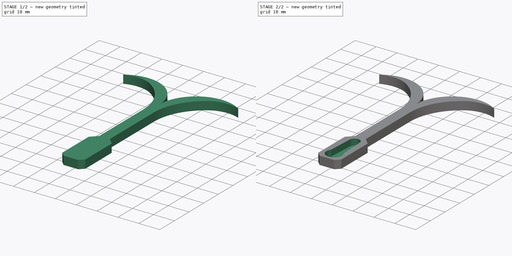
[diagram: build sequence overview — one tinted view per stage of 2, left to right]
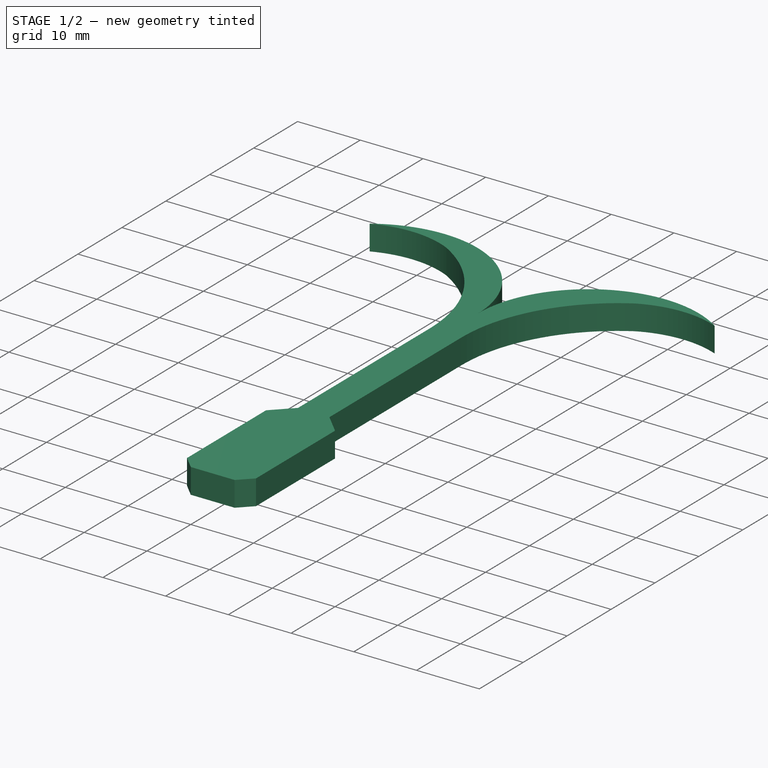
[diagram: stage 1 of 2 — iso view after this stage's code; geometry added in this stage tinted green]
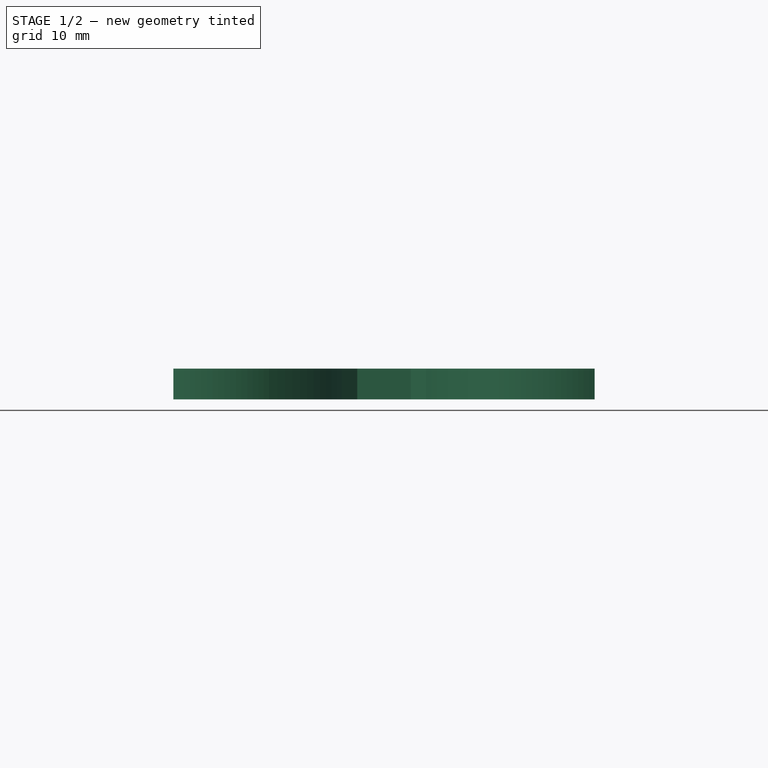
[diagram: stage 1 of 2 — front view after this stage's code; geometry added in this stage tinted green]
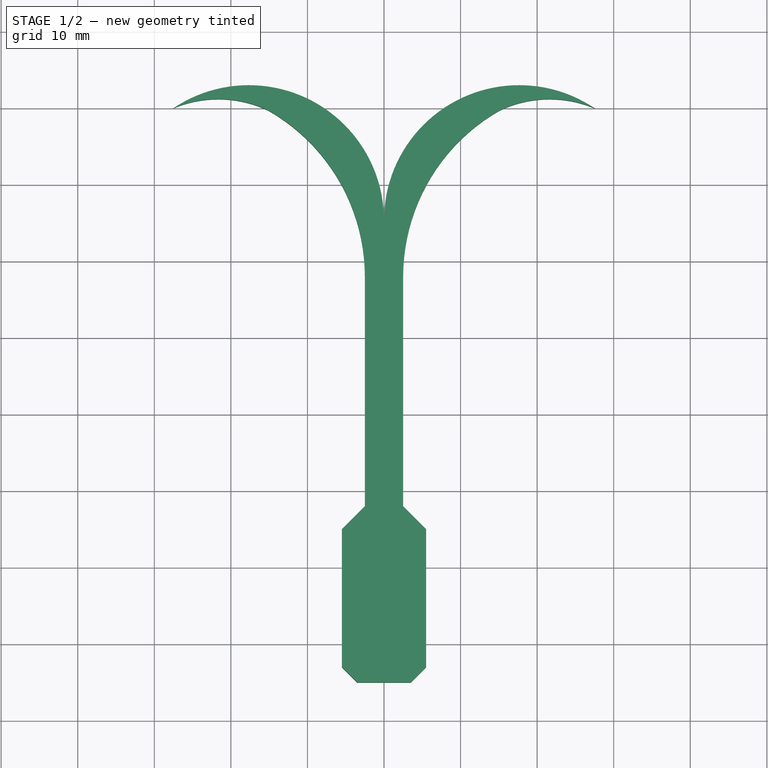
[diagram: stage 1 of 2 — top view after this stage's code; geometry added in this stage tinted green]
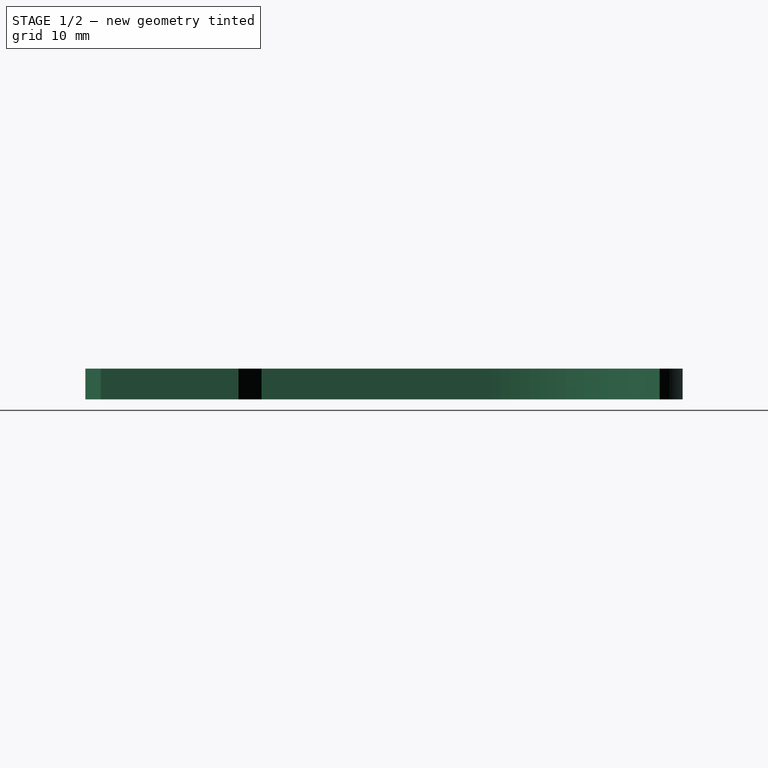
[diagram: stage 1 of 2 — right view after this stage's code; geometry added in this stage tinted green]
FCSTD DOCUMENT  (FreeCAD 0.15R4671 (Git))
Label: car-hand
License: All rights reserved
LicenseURL: http://en.wikipedia.org/wiki/All_rights_reserved
objects: Sketcher::SketchObject×2, PartDesign::Pad×1, PartDesign::Pocket×1
note: 6 computed .brp shape members not serialized (recipe doc carries the construction recipe); baked Part::Feature solids carry a one-line shape summary decoded from their .brp

FEATURE [Sketcher::SketchObject] Sketch
  sketch-geometry (24):
    g0: LineSegment StartX=2.5 StartY=18 StartZ=0 EndX=2.5 EndY=48 EndZ=0
    g1: LineSegment StartX=-2.5 StartY=48 StartZ=0 EndX=-2.5 EndY=18 EndZ=0
    g2: ArcOfCircle CenterX=27.5 CenterY=48 CenterZ=0 NormalX=0 NormalY=0 NormalZ=1 Radius=25 StartAngle=2.09339 EndAngle=3.14159
    g3: ArcOfCircle CenterX=17.6548 CenterY=55.3452 CenterZ=0 NormalX=0 NormalY=0 NormalZ=1 Radius=17.6548 StartAngle=0.979241 EndAngle=3.14159
    g4: LineSegment StartX=-2.5 StartY=18 StartZ=0 EndX=-5.5 EndY=15 EndZ=0
    g5: LineSegment StartX=-5.5 StartY=15 StartZ=0 EndX=-5.5 EndY=-3 EndZ=0
    g6: LineSegment StartX=-5.5 StartY=-3 StartZ=0 EndX=-3.5 EndY=-5 EndZ=0
    g7: LineSegment StartX=-3.5 StartY=-5 StartZ=0 EndX=3.5 EndY=-5 EndZ=0
    g8: LineSegment StartX=3.5 StartY=-5 StartZ=0 EndX=5.5 EndY=-3 EndZ=0
    g9: LineSegment StartX=5.5 StartY=-3 StartZ=0 EndX=5.5 EndY=15 EndZ=0
    g10: LineSegment StartX=5.5 StartY=15 StartZ=0 EndX=2.5 EndY=18 EndZ=0
    g11: LineSegment [constr] StartX=-2.5 StartY=18 StartZ=0 EndX=2.5 EndY=18 EndZ=0
    g12: LineSegment [constr] StartX=-5.5 StartY=15 StartZ=0 EndX=5.5 EndY=15 EndZ=0
    g13: ArcOfCircle CenterX=-27.5 CenterY=48 CenterZ=0 NormalX=0 NormalY=0 NormalZ=1 Radius=25 StartAngle=0 EndAngle=1.0482
    g14: ArcOfCircle CenterX=-17.6548 CenterY=55.3452 CenterZ=0 NormalX=0 NormalY=0 NormalZ=1 Radius=17.6548 StartAngle=1.4097e-08 EndAngle=2.16235
    g15: LineSegment [constr] StartX=-27.5 StartY=73 StartZ=0 EndX=27.5 EndY=73 EndZ=0
    g16: LineSegment [constr] StartX=-27.5 StartY=73 StartZ=0 EndX=-27.5 EndY=48 EndZ=0
    g17: LineSegment [constr] StartX=27.5 StartY=73 StartZ=0 EndX=27.5 EndY=48 EndZ=0
    g18: LineSegment [constr] StartX=-27.5 StartY=48 StartZ=0 EndX=27.5 EndY=48 EndZ=0
    g19: LineSegment [constr] StartX=-15.0217 StartY=69.6632 StartZ=0 EndX=15.0217 EndY=69.6632 EndZ=0
    g20: LineSegment [constr] StartX=0 StartY=73 StartZ=0 EndX=0 EndY=48 EndZ=0
    g21: ArcOfCircle CenterX=-21.6342 CenterY=56 CenterZ=0 NormalX=0 NormalY=0 NormalZ=1 Radius=15.1792 StartAngle=1.12006 EndAngle=1.96756
    g22: ArcOfCircle CenterX=21.6342 CenterY=56 CenterZ=0 NormalX=0 NormalY=0 NormalZ=1 Radius=15.1792 StartAngle=1.17403 EndAngle=2.02154
    g23: LineSegment [constr] StartX=-21.6342 StartY=56 StartZ=0 EndX=21.6342 EndY=56 EndZ=0
  constraints (71):
    c: Vertical(g0)
    c: Vertical(g1)
    c: Equal(g1,g0)
    c: Coincident(g2,g0)
    c: Coincident(g4,g5)
    c: Coincident(g5,g6)
    c: Coincident(g6,g7)
    c: Coincident(g7,g8)
    c: Coincident(g8,g9)
    c: Coincident(g9,g10)
    c: Coincident(g4,g1)
    c: Coincident(g10,g0)
    c: Vertical(g9)
    c: Vertical(g5)
    c: Horizontal(g7)
    c: DistanceY(g0,g7) = -23
    c: DistanceX(g7) = 7
    c: Equal(g5,g9)
    c: Equal(g4,g10)
    c: Equal(g6,g8)
    c: DistanceY(g4,g1) = 3
    c: DistanceY(g6,g5) = 2
    c: Horizontal(g11)
    c: Coincident(g11,g1)
    c: Coincident(g11,g0)
    c: Coincident(g12,g9)
    c: Coincident(g12,g4)
    c: Horizontal(g12)
    c: DistanceY(g1,g1) = -30
    c: DistanceX(g1,g0) = 5
    c: Coincident(g13,g1)
    c: DistanceX(g4,g1) = 3
    c: Symmetric(g7,g6,g-2)
    c: DistanceY(g-1,g7) = -5
    c: Horizontal(g15)
    c: Tangent(g14,g15)
    c: Tangent(g3,g15)
    c: Coincident(g16,g15)
    c: Coincident(g17,g15)
    c: Coincident(g18,g17)
    c: Coincident(g18,g16)
    c: Horizontal(g18)
    c: Vertical(g16)
    c: Vertical(g17)
    c: PointOnObject(g0,g18)
    c: PointOnObject(g3,g17)
    c: PointOnObject(g14,g16)
    c: Symmetric(g15,g15,g-2)
    c: Coincident(g19,g2)
    c: Coincident(g19,g13)
    c: Horizontal(g19)
    c: Coincident(g13,g16)
    c: Coincident(g2,g17)
    c: Coincident(g14,g3)
    c: PointOnObject(g20,g15)
    c: Tangent(g3,g20)
    c: Tangent(g14,g20)
    c: Vertical(g20)
    c: PointOnObject(g20,g18)
    c: DistanceX(g15) = 55
    c: PointOnObject(g20,g-2)
    c: DistanceY(g16) = -25
    c: Coincident(g13,g21)
    c: Coincident(g14,g21)
    c: Coincident(g2,g22)
    c: Coincident(g3,g22)
    c: Coincident(g23,g22)
    c: Coincident(g21,g23)
    c: Horizontal(g23)
    c: DistanceY(g22,g2) = -8
    c: DistanceY(g15,g3) = -3
FEATURE [PartDesign::Pad] Pad
  Length = 4
  Length2 = 100
  Sketch = -> Sketch
  Type = 0
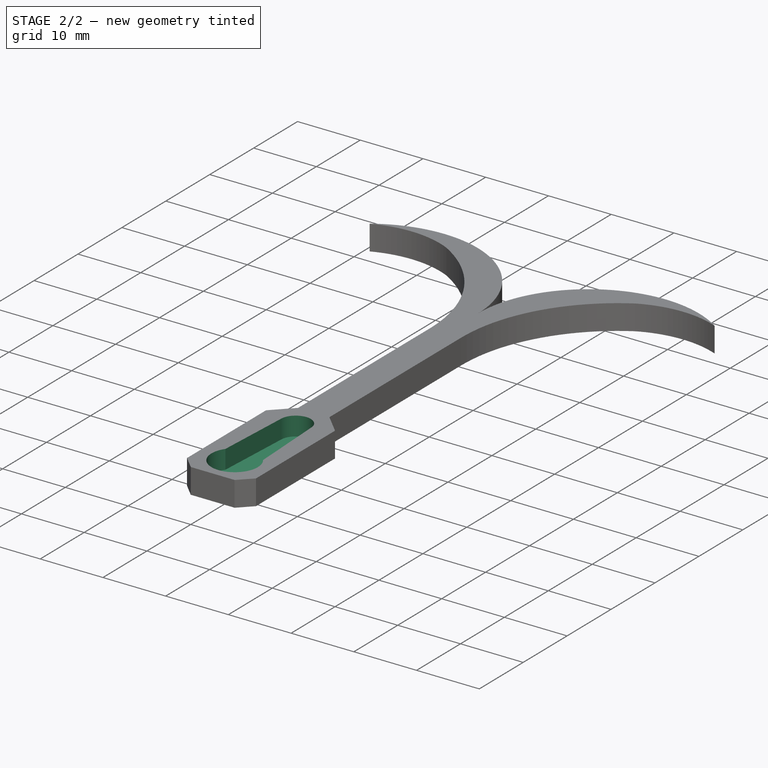
[diagram: stage 2 of 2 — iso view after this stage's code; geometry added in this stage tinted green]
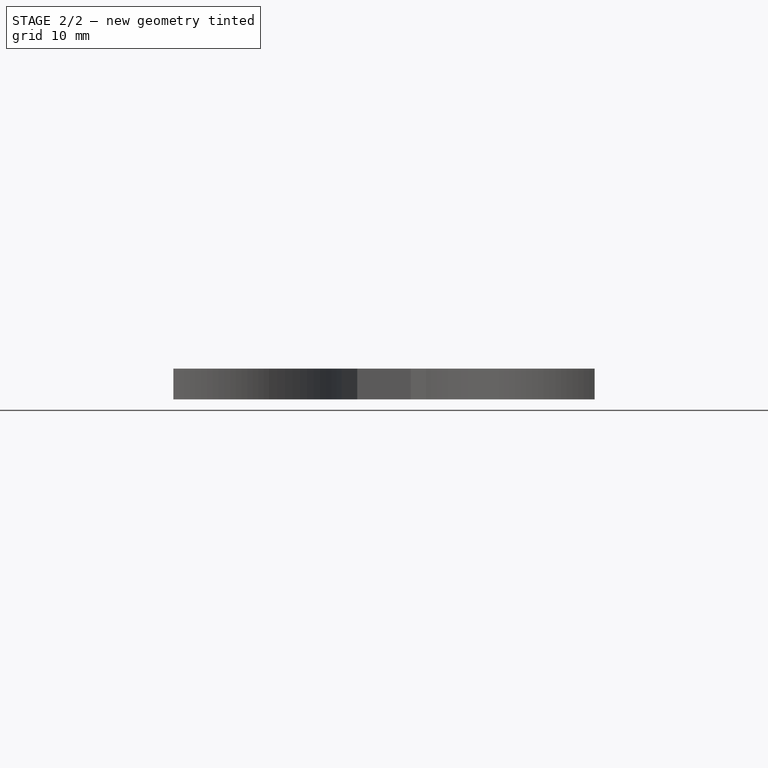
[diagram: stage 2 of 2 — front view after this stage's code; geometry added in this stage tinted green]
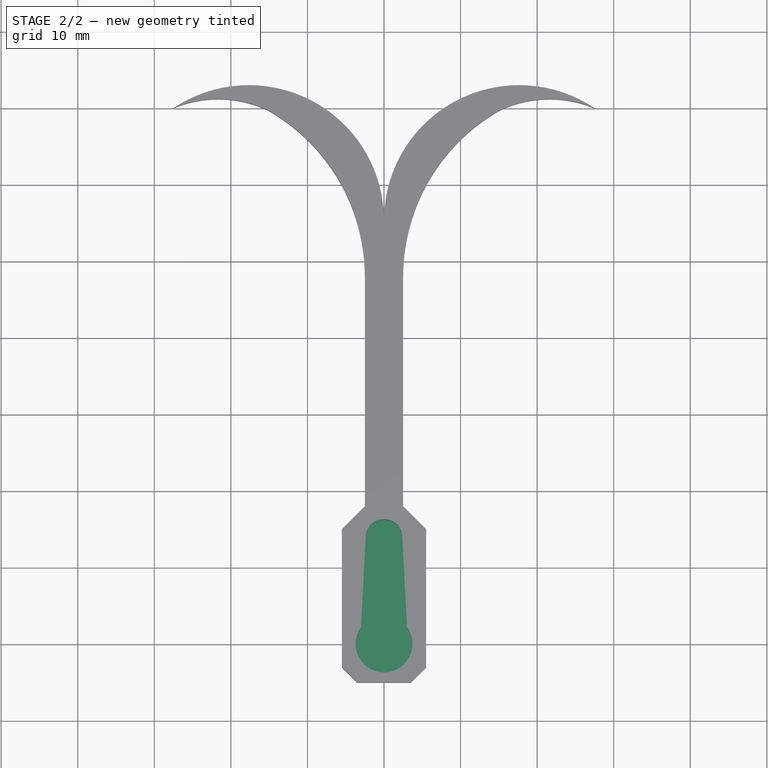
[diagram: stage 2 of 2 — top view after this stage's code; geometry added in this stage tinted green]
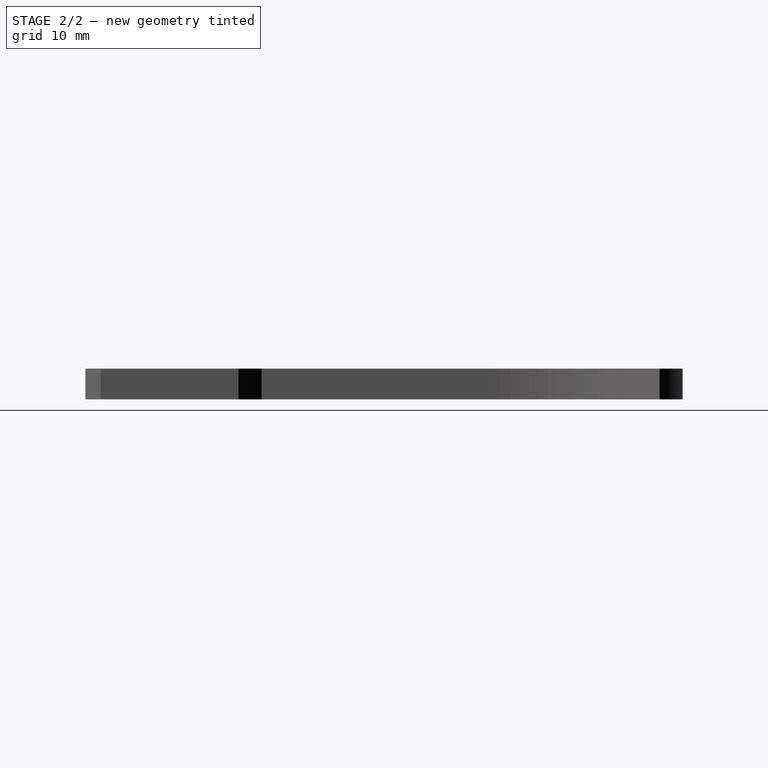
[diagram: stage 2 of 2 — right view after this stage's code; geometry added in this stage tinted green]
FEATURE [Sketcher::SketchObject] Sketch001
  Placement = pos=(0,0,4) rot=(0,0,1;0rad)
  Support = -> Pad [Face17]
  sketch-geometry (11):
    g0: ArcOfCircle CenterX=0 CenterY=0 CenterZ=0 NormalX=0 NormalY=0 NormalZ=1 Radius=3.7 StartAngle=2.51633 EndAngle=6.90845
    g1: LineSegment StartX=-3 StartY=2.16564 StartZ=0 EndX=-2.4 EndY=13.9 EndZ=0
    g2: LineSegment StartX=2.4 StartY=13.9 StartZ=0 EndX=3 EndY=2.16564 EndZ=0
    g3: ArcOfCircle CenterX=0 CenterY=13.9 CenterZ=0 NormalX=0 NormalY=0 NormalZ=1 Radius=2.4 StartAngle=4.16742e-06 EndAngle=3.14159
    g4: LineSegment [constr] StartX=-3 StartY=2.16564 StartZ=0 EndX=3 EndY=2.16564 EndZ=0
    g5: LineSegment [constr] StartX=-2.4 StartY=13.9 StartZ=0 EndX=2.4 EndY=13.9 EndZ=0
    g6: LineSegment [constr] StartX=0 StartY=13.9 StartZ=0 EndX=0 EndY=0 EndZ=0
    g7: LineSegment [constr] StartX=-3.7 StartY=16.3 StartZ=0 EndX=3.7 EndY=16.3 EndZ=0
    g8: LineSegment [constr] StartX=-3.7 StartY=-3.7 StartZ=0 EndX=3.7 EndY=-3.7 EndZ=0
    g9: LineSegment [constr] StartX=-3.7 StartY=16.3 StartZ=0 EndX=-3.7 EndY=-3.7 EndZ=0
    g10: LineSegment [constr] StartX=3.7 StartY=16.3 StartZ=0 EndX=3.7 EndY=-3.7 EndZ=0
  constraints (31):
    c: Coincident(g1,g0)
    c: Coincident(g0,g2)
    c: Coincident(g3,g2)
    c: Coincident(g1,g3)
    c: Radius(g3) = 2.4
    c: Horizontal(g4)
    c: Coincident(g4,g0)
    c: Coincident(g4,g0)
    c: Coincident(g5,g2)
    c: Coincident(g5,g1)
    c: Horizontal(g5)
    c: Coincident(g6,g3)
    c: Coincident(g6,g0)
    c: Vertical(g6)
    c: Horizontal(g7)
    c: Tangent(g7,g3)
    c: Horizontal(g8)
    c: Tangent(g8,g0)
    c: DistanceY(g8,g7) = 20
    c: Coincident(g9,g7)
    c: Coincident(g9,g8)
    c: Coincident(g10,g7)
    c: Coincident(g10,g8)
    c: Tangent(g10,g0)
    c: Vertical(g10)
    c: Tangent(g9,g0)
    c: Vertical(g9)
    c: DistanceX(g8) = 7.4
    c: DistanceX(g4) = 6
    c: DistanceX(g5) = 4.8
    c: Coincident(g0,g-1)
FEATURE [PartDesign::Pocket] Pocket
  Length = 3
  Sketch = -> Sketch001
  Type = 0
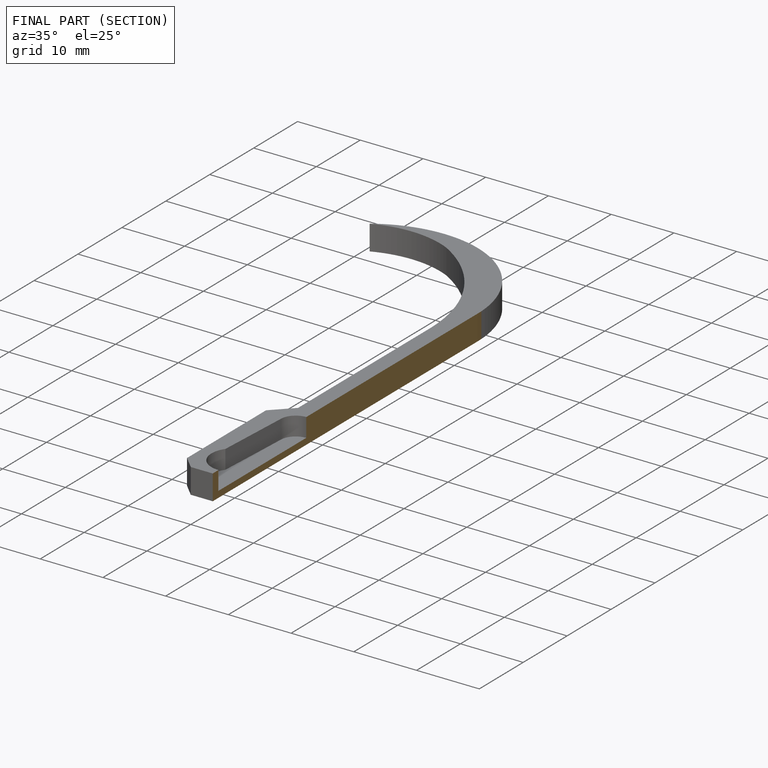
[diagram: finished part — half-section view (interior)]
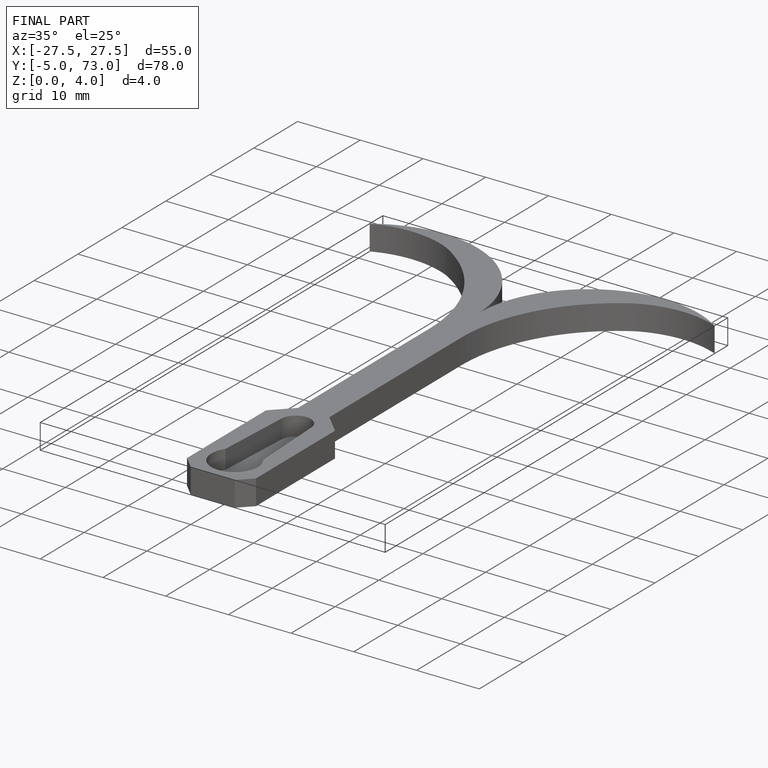
[diagram: finished part — iso view with bounding-box wireframe]
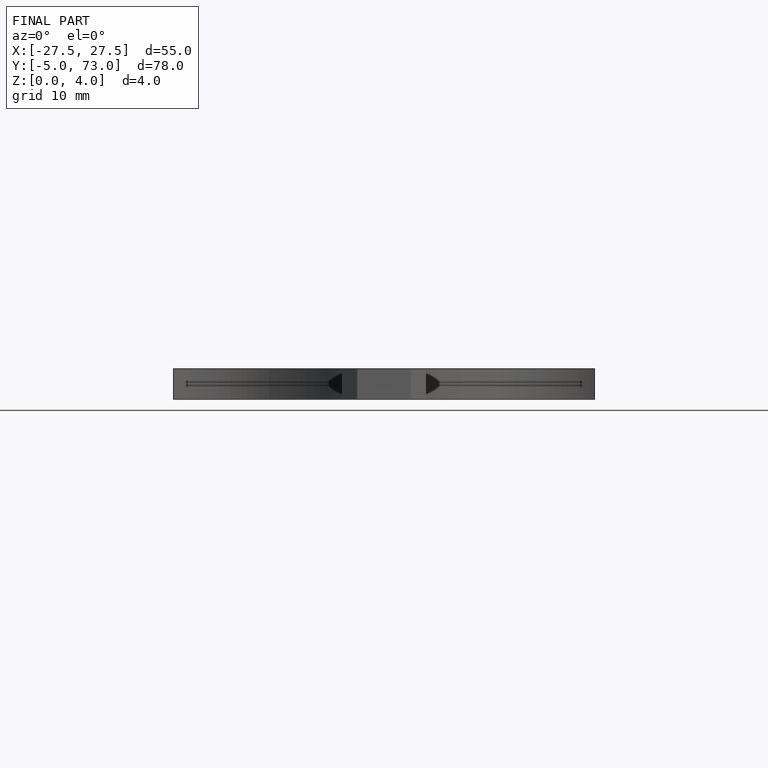
[diagram: finished part — front view with bounding-box wireframe]
